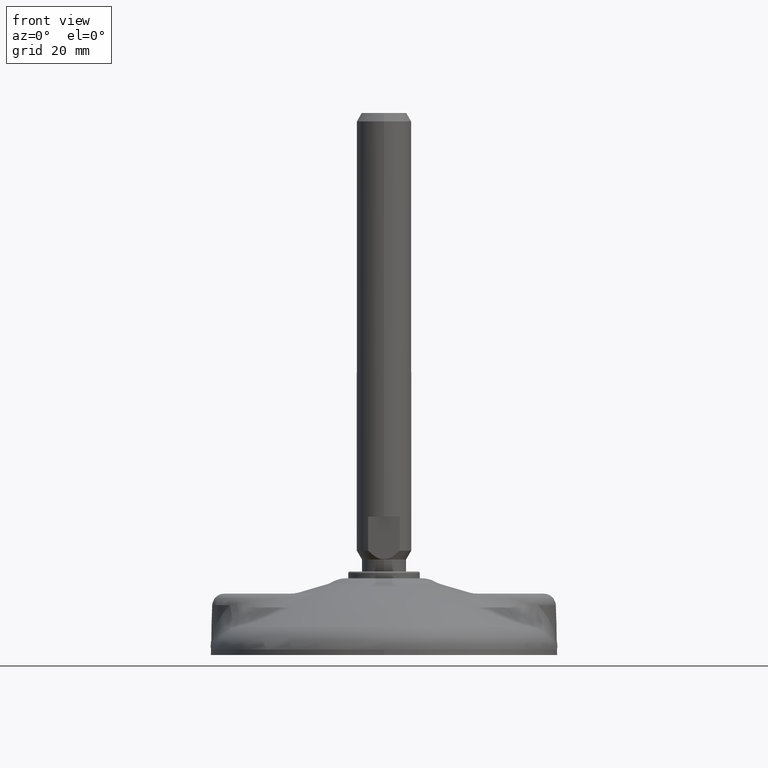
[diagram: clean part render]
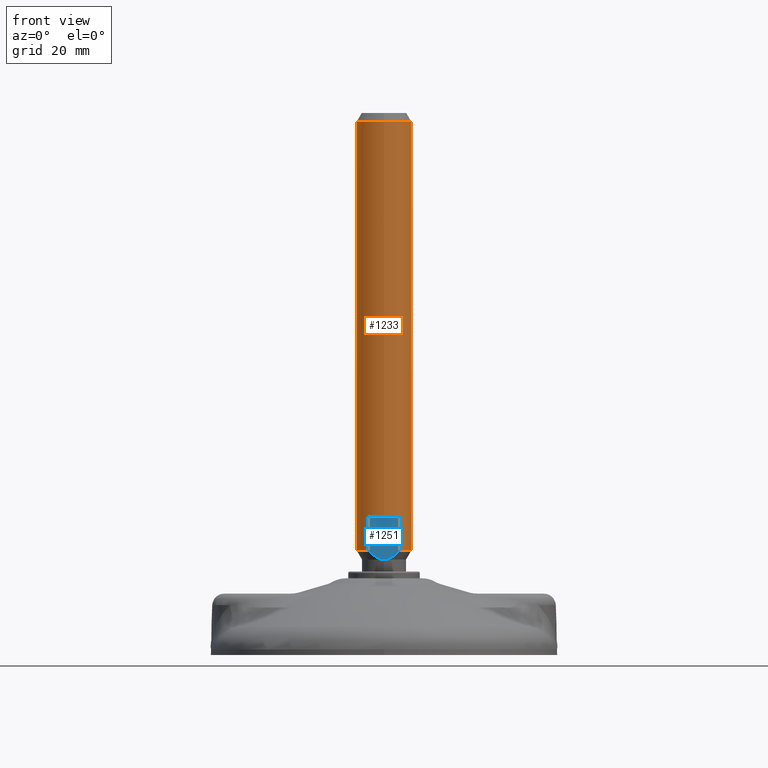
[diagram: same view with the hole feature highlighted: cylindrical wall and planar end face, labeled with their STEP entity ids]
A machine part, front view. The highlighted faces form one hole feature of diameter 16 mm: the cylindrical wall (entity #1233, orange) and its adjacent planar end face (entity #1251, blue) — they share a circular edge in the B-rep.
Wall:
#98=CYLINDRICAL_SURFACE('',#1388,8.00000050000006);
#126=LINE('',#5850,#165);
#127=LINE('',#5854,#166);
#128=LINE('',#5858,#167);
#129=LINE('',#5862,#168);
#130=LINE('',#5867,#169);
#165=VECTOR('',#1673,1.);
#166=VECTOR('',#1676,1.);
#167=VECTOR('',#1679,1.);
#168=VECTOR('',#1682,8.00000050000006);
#169=VECTOR('',#1687,1.);
#254=FACE_OUTER_BOUND('',#343,.T.);
#343=EDGE_LOOP('',(#970,#971,#972,#973,#974,#975,#976,#977,#978,#979,#980,
#981));
#437=CIRCLE('',#1389,8.00000050000004);
#438=CIRCLE('',#1390,8.00000050000007);
#439=CIRCLE('',#1391,8.00000050000001);
#440=CIRCLE('',#1392,8.00000050000006);
#441=CIRCLE('',#1393,8.00000050000001);
#442=CIRCLE('',#1394,8.00000050000003);
#535=VERTEX_POINT('',#5848);
#536=VERTEX_POINT('',#5849);
#537=VERTEX_POINT('',#5851);
#538=VERTEX_POINT('',#5853);
#539=VERTEX_POINT('',#5855);
#540=VERTEX_POINT('',#5857);
#541=VERTEX_POINT('',#5859);
#542=VERTEX_POINT('',#5861);
#543=VERTEX_POINT('',#5864);
#544=VERTEX_POINT('',#5866);
#685=EDGE_CURVE('',#535,#536,#126,.T.);
#686=EDGE_CURVE('',#535,#537,#437,.T.);
#687=EDGE_CURVE('',#538,#537,#127,.T.);
#688=EDGE_CURVE('',#539,#538,#438,.T.);
#689=EDGE_CURVE('',#540,#539,#128,.T.);
#690=EDGE_CURVE('',#541,#540,#439,.T.);
#691=EDGE_CURVE('',#541,#542,#129,.T.);
#692=EDGE_CURVE('',#542,#542,#440,.T.);
#693=EDGE_CURVE('',#543,#541,#441,.T.);
#694=EDGE_CURVE('',#544,#543,#130,.T.);
#695=EDGE_CURVE('',#536,#544,#442,.T.);
#970=ORIENTED_EDGE('',*,*,#685,.F.);
#971=ORIENTED_EDGE('',*,*,#686,.T.);
#972=ORIENTED_EDGE('',*,*,#687,.F.);
#973=ORIENTED_EDGE('',*,*,#688,.F.);
#974=ORIENTED_EDGE('',*,*,#689,.F.);
#975=ORIENTED_EDGE('',*,*,#690,.F.);
#976=ORIENTED_EDGE('',*,*,#691,.T.);
#977=ORIENTED_EDGE('',*,*,#692,.T.);
#978=ORIENTED_EDGE('',*,*,#691,.F.);
#979=ORIENTED_EDGE('',*,*,#693,.F.);
#980=ORIENTED_EDGE('',*,*,#694,.F.);
#981=ORIENTED_EDGE('',*,*,#695,.F.);
#1233=ADVANCED_FACE('',(#254),#98,.T.);
#1388=AXIS2_PLACEMENT_3D('',#5847,#1671,#1672);
#1389=AXIS2_PLACEMENT_3D('',#5852,#1674,#1675);
#1390=AXIS2_PLACEMENT_3D('',#5856,#1677,#1678);
#1391=AXIS2_PLACEMENT_3D('',#5860,#1680,#1681);
#1392=AXIS2_PLACEMENT_3D('',#5863,#1683,#1684);
#1393=AXIS2_PLACEMENT_3D('',#5865,#1685,#1686);
#1394=AXIS2_PLACEMENT_3D('',#5868,#1688,#1689);
#1671=DIRECTION('center_axis',(0.,-7.273662E-16,-1.));
#1672=DIRECTION('ref_axis',(0.,1.,-7.273662E-16));
#1673=DIRECTION('',(0.,0.,-1.));
#1674=DIRECTION('center_axis',(-1.729655E-15,-1.517548E-13,1.));
#1675=DIRECTION('ref_axis',(0.582961261593924,0.812499949218965,1.24309089154656E-13));
#1676=DIRECTION('',(0.,0.,1.));
#1677=DIRECTION('center_axis',(-3.033901E-14,3.96024E-15,-1.));
#1678=DIRECTION('ref_axis',(-0.582961261594229,-0.812499949218746,1.44687727462259E-14));
#1679=DIRECTION('',(0.,0.,-1.));
#1680=DIRECTION('center_axis',(-4.930381E-32,-7.273662E-16,-1.));
#1681=DIRECTION('ref_axis',(0.582961261593925,-0.812499949218964,5.90985000563591E-16));
#1682=DIRECTION('',(0.,7.273662E-16,1.));
#1683=DIRECTION('center_axis',(-1.760998E-14,1.315042E-14,-1.));
#1684=DIRECTION('ref_axis',(1.734723E-15,1.,1.315042E-14));
#1685=DIRECTION('center_axis',(-4.930381E-32,-7.273662E-16,-1.));
#1686=DIRECTION('ref_axis',(0.582961261593925,-0.812499949218964,5.90985000563591E-16));
#1687=DIRECTION('',(0.,0.,1.));
#1688=DIRECTION('center_axis',(3.033901E-14,-5.414972E-15,-1.));
#1689=DIRECTION('ref_axis',(0.582961261594225,0.812499949218749,1.32868030700989E-14));
#5847=CARTESIAN_POINT('Origin',(-1.237659877E-6,7.472622E-14,163.50233569007));
#5848=CARTESIAN_POINT('',(4.66368914657461,6.49999999999999,40.6257937385598));
#5849=CARTESIAN_POINT('',(4.66368914657461,6.49999999999998,30.6257937385594));
#5850=CARTESIAN_POINT('',(4.66368914657461,6.49999999999999,40.6257937385598));
#5851=CARTESIAN_POINT('',(-4.66369162189438,6.49999999999999,40.6257937385601));
#5852=CARTESIAN_POINT('Origin',(-1.237656102E-6,1.049706E-13,40.6257937385584));
#5853=CARTESIAN_POINT('',(-4.66369162189438,6.49999999999998,30.6257937385594));
#5854=CARTESIAN_POINT('',(-4.66369162189438,6.49999999999998,30.6257937385594));
#5855=CARTESIAN_POINT('',(-4.66369162189438,-6.50000000000003,30.6257937385594));
#5856=CARTESIAN_POINT('Origin',(-1.237659774E-6,1.205538E-13,30.6257937385593));
#5857=CARTESIAN_POINT('',(-4.66369162189438,-6.50000000000002,40.6257937385601));
#5858=CARTESIAN_POINT('',(-4.66369162189438,-6.50000000000002,40.6257937385601));
#5859=CARTESIAN_POINT('',(-1.23765987797972E-6,-8.00000050000008,40.6257937385594));
#5860=CARTESIAN_POINT('Origin',(-1.237656172E-6,-7.146221E-14,40.6257937385594));
#5861=CARTESIAN_POINT('',(-1.23765987797972E-6,-8.00000049999999,156.548881311427));
#5862=CARTESIAN_POINT('',(-1.23765987797972E-6,-8.00000049999999,163.50233569007));
#5863=CARTESIAN_POINT('Origin',(-1.237657123E-6,-4.718663312412E-13,156.548881311427));
#5864=CARTESIAN_POINT('',(4.66368914657461,-6.50000000000002,40.6257937385599));
#5865=CARTESIAN_POINT('Origin',(-1.237656172E-6,-7.146221E-14,40.6257937385594));
#5866=CARTESIAN_POINT('',(4.66368914657461,-6.50000000000003,30.6257937385594));
#5867=CARTESIAN_POINT('',(4.66368914657461,-6.50000000000003,30.6257937385594));
#5868=CARTESIAN_POINT('Origin',(-1.237659939E-6,-1.641843E-13,30.6257937385593));
End face:
#15=(
BOUNDED_CURVE()
B_SPLINE_CURVE(2,(#5887,#5888,#5889),.UNSPECIFIED.,.F.,.F.)
B_SPLINE_CURVE_WITH_KNOTS((3,3),(0.888435921567478,1.65373779169291),
 .UNSPECIFIED.)
CURVE()
GEOMETRIC_REPRESENTATION_ITEM()
RATIONAL_B_SPLINE_CURVE((1.43798979562141,1.56773903900054,1.59602572320515))
REPRESENTATION_ITEM('')
);
#16=(
BOUNDED_CURVE()
B_SPLINE_CURVE(2,(#5892,#5893,#5894),.UNSPECIFIED.,.F.,.F.)
B_SPLINE_CURVE_WITH_KNOTS((3,3),(2.08045386307054,2.84575573319597),
 .UNSPECIFIED.)
CURVE()
GEOMETRIC_REPRESENTATION_ITEM()
RATIONAL_B_SPLINE_CURVE((1.59602572320514,1.56773903900053,1.43798979562141))
REPRESENTATION_ITEM('')
);
#128=LINE('',#5858,#167);
#130=LINE('',#5867,#169);
#140=LINE('',#5947,#179);
#141=LINE('',#5949,#180);
#167=VECTOR('',#1679,1.);
#169=VECTOR('',#1687,1.);
#179=VECTOR('',#1771,1.);
#180=VECTOR('',#1774,1.);
#272=FACE_OUTER_BOUND('',#366,.T.);
#366=EDGE_LOOP('',(#1045,#1046,#1047,#1048,#1049,#1050));
#539=VERTEX_POINT('',#5855);
#540=VERTEX_POINT('',#5857);
#543=VERTEX_POINT('',#5864);
#544=VERTEX_POINT('',#5866);
#550=VERTEX_POINT('',#5886);
#551=VERTEX_POINT('',#5890);
#689=EDGE_CURVE('',#540,#539,#128,.T.);
#694=EDGE_CURVE('',#544,#543,#130,.T.);
#703=EDGE_CURVE('',#544,#550,#15,.T.);
#705=EDGE_CURVE('',#551,#539,#16,.T.);
#728=EDGE_CURVE('',#543,#540,#140,.T.);
#729=EDGE_CURVE('',#551,#550,#141,.T.);
#1045=ORIENTED_EDGE('',*,*,#694,.T.);
#1046=ORIENTED_EDGE('',*,*,#728,.T.);
#1047=ORIENTED_EDGE('',*,*,#689,.T.);
#1048=ORIENTED_EDGE('',*,*,#705,.F.);
#1049=ORIENTED_EDGE('',*,*,#729,.T.);
#1050=ORIENTED_EDGE('',*,*,#703,.F.);
#1087=PLANE('',#1431);
#1251=ADVANCED_FACE('',(#272),#1087,.T.);
#1431=AXIS2_PLACEMENT_3D('',#5948,#1772,#1773);
#1679=DIRECTION('',(0.,0.,-1.));
#1687=DIRECTION('',(0.,0.,1.));
#1771=DIRECTION('',(-1.,0.,0.));
#1772=DIRECTION('center_axis',(0.,-1.,7.273662E-16));
#1773=DIRECTION('ref_axis',(1.,0.,0.));
#1774=DIRECTION('',(1.,0.,0.));
#5855=CARTESIAN_POINT('',(-4.66369162189438,-6.50000000000003,30.6257937385594));
#5857=CARTESIAN_POINT('',(-4.66369162189438,-6.50000000000002,40.6257937385601));
#5858=CARTESIAN_POINT('',(-4.66369162189438,-6.50000000000002,40.6257937385601));
#5864=CARTESIAN_POINT('',(4.66368914657461,-6.50000000000002,40.6257937385599));
#5866=CARTESIAN_POINT('',(4.66368914657461,-6.50000000000003,30.6257937385594));
#5867=CARTESIAN_POINT('',(4.66368914657461,-6.50000000000003,30.6257937385594));
#5886=CARTESIAN_POINT('',(0.916056476089874,-6.50000000000003,28.1389721090187));
#5887=CARTESIAN_POINT('Ctrl Pts',(4.66368914657443,-6.50000000000007,30.6257937385596));
#5888=CARTESIAN_POINT('Ctrl Pts',(2.60514880783457,-6.50000000000008,28.547247195359));
#5889=CARTESIAN_POINT('Ctrl Pts',(0.916056476089648,-6.50000000000008,28.138972109019));
#5890=CARTESIAN_POINT('',(-0.916058951409671,-6.50000000000003,28.1389721090187));
#5892=CARTESIAN_POINT('Ctrl Pts',(-0.916058951409447,-6.50000000000007,
28.1389721090191));
#5893=CARTESIAN_POINT('Ctrl Pts',(-2.60515128315436,-6.50000000000008,28.5472471953591));
#5894=CARTESIAN_POINT('Ctrl Pts',(-4.66369162189418,-6.50000000000007,30.6257937385596));
#5947=CARTESIAN_POINT('',(4.66368914657461,-6.50000000000002,40.6257937385599));
#5948=CARTESIAN_POINT('Origin',(-5.13006066031783,-6.50000000000003,27.5146310275417));
#5949=CARTESIAN_POINT('',(-0.916058951409671,-6.50000000000003,28.1389721090187));